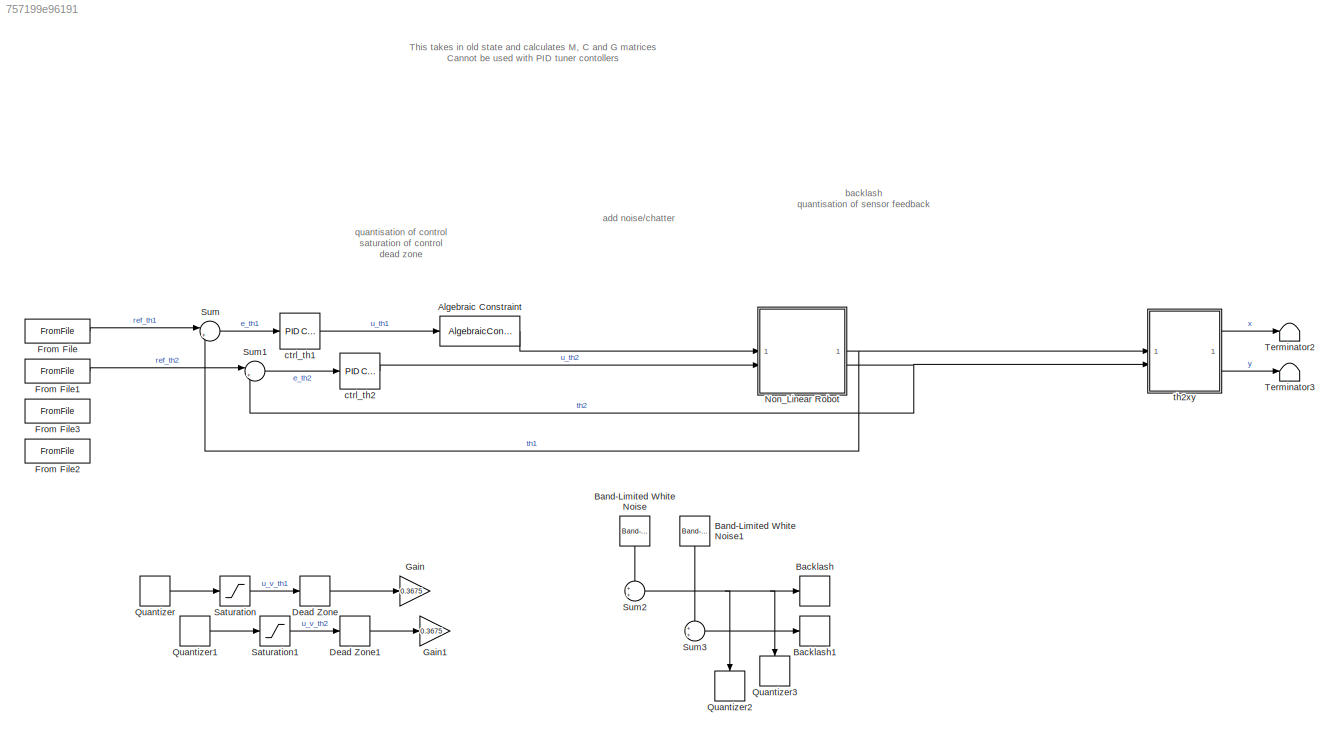
MODEL slx_757199e96191
KIND model
CONFIG AbsTol = auto
CONFIG EnableMultiTasking = off
CONFIG FixedStep = 0.0002
CONFIG MaxStep = auto
CONFIG MinStep = auto
CONFIG RelTol = 1e-3
CONFIG SampleTimeConstraint = Unconstrained
CONFIG SolverName = VariableStepAuto
CONFIG StartTime = 0.0
CONFIG StopTime = 10.0
BLOCK [AlgebraicConstraint] Algebraic Constraint
BLOCK [Backlash] Backlash
  BacklashWidth = 2
  Commented = on
BLOCK [Backlash] Backlash1
  BacklashWidth = 2
  Commented = on
BLOCK [Reference] Band-Limited White Noise  REF=simulink/Sources/Band-Limited
White Noise
  Commented = on
  NameLocation = left
  SourceBlock = simulink/Sources/Band-Limited\nWhite Noise
  SourceType = Band-Limited White Noise.
BLOCK [Reference] Band-Limited White Noise1  REF=simulink/Sources/Band-Limited
White Noise
  Commented = on
  NameLocation = left
  SourceBlock = simulink/Sources/Band-Limited\nWhite Noise
  SourceType = Band-Limited White Noise.
BLOCK [DeadZone] Dead Zone
  Commented = on
BLOCK [DeadZone] Dead Zone1
  Commented = on
BLOCK [FromFile] From File
  FileName = ref_th1.mat
  SampleTime = 0
BLOCK [FromFile] From File1
  FileName = ref_th2.mat
  SampleTime = 0
BLOCK [FromFile] From File2
  Commented = on
  FileName = ref_dth2.mat
  SampleTime = 0
BLOCK [FromFile] From File3
  Commented = on
  FileName = ref_dth1.mat
  SampleTime = 0
BLOCK [Gain] Gain
  Commented = on
  Gain = 0.3675
BLOCK [Gain] Gain1
  Commented = on
  Gain = 0.3675
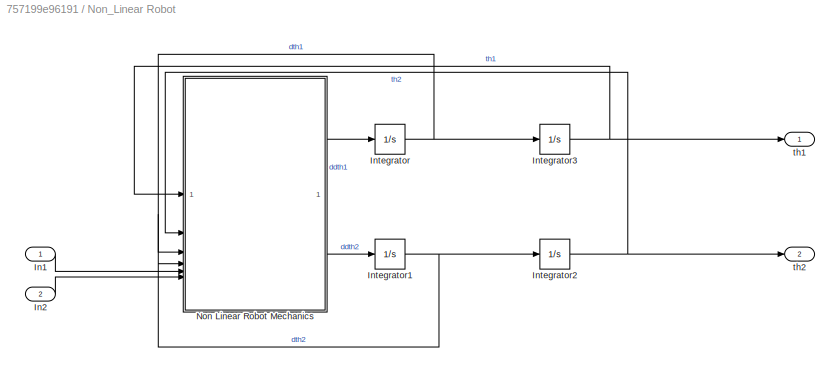
BLOCK [SubSystem] Non_Linear Robot
BLOCK [Inport] Non_Linear Robot/In1
BLOCK [Inport] Non_Linear Robot/In2
  Port = 2
BLOCK [Integrator] Non_Linear Robot/Integrator
BLOCK [Integrator] Non_Linear Robot/Integrator1
BLOCK [Integrator] Non_Linear Robot/Integrator2
BLOCK [Integrator] Non_Linear Robot/Integrator3
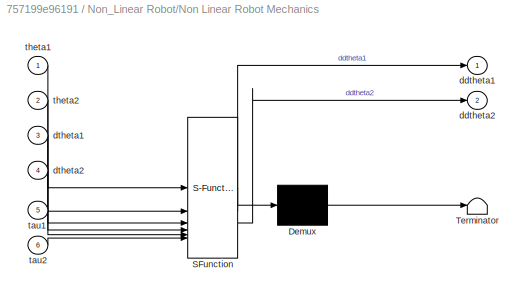
BLOCK [SubSystem] Non_Linear Robot/Non Linear Robot Mechanics
  ErrorFcn = Stateflow.Translate.translate
  PermitHierarchicalResolution = ExplicitOnly
  SFBlockType = MATLAB Function
  TreatAsAtomicUnit = on
BLOCK [Demux] Non_Linear Robot/Non Linear Robot Mechanics/ Demux 
  Outputs = 1
BLOCK [S-Function] Non_Linear Robot/Non Linear Robot Mechanics/ SFunction 
  EnableBusSupport = on
  FunctionName = sf_sfun
  Parameters = I1,I2,L1,L2,g,lc1,lc2,m1,m2
  PortCounts = [6 3]
  SFcnIsStateOwnerBlock = off
  SFunctionDeploymentMode = off
  Tag = Stateflow S-Function 1
BLOCK [Terminator] Non_Linear Robot/Non Linear Robot Mechanics/ Terminator 
BLOCK [Outport] Non_Linear Robot/Non Linear Robot Mechanics/ddtheta1
BLOCK [Outport] Non_Linear Robot/Non Linear Robot Mechanics/ddtheta2
  Port = 2
BLOCK [Inport] Non_Linear Robot/Non Linear Robot Mechanics/dtheta1
  Port = 3
BLOCK [Inport] Non_Linear Robot/Non Linear Robot Mechanics/dtheta2
  Port = 4
BLOCK [Inport] Non_Linear Robot/Non Linear Robot Mechanics/tau1
  Port = 5
BLOCK [Inport] Non_Linear Robot/Non Linear Robot Mechanics/tau2
  Port = 6
BLOCK [Inport] Non_Linear Robot/Non Linear Robot Mechanics/theta1
BLOCK [Inport] Non_Linear Robot/Non Linear Robot Mechanics/theta2
  Port = 2
BLOCK [Outport] Non_Linear Robot/th1
BLOCK [Outport] Non_Linear Robot/th2
  Port = 2
BLOCK [Quantizer] Quantizer
  Commented = on
  QuantizationInterval = 0.05
BLOCK [Quantizer] Quantizer1
  Commented = on
  QuantizationInterval = 0.05
BLOCK [Quantizer] Quantizer2
  Commented = on
  NameLocation = left
  QuantizationInterval = 0.17
BLOCK [Quantizer] Quantizer3
  Commented = on
  NameLocation = left
  QuantizationInterval = 0.17
BLOCK [Saturate] Saturation
  Commented = on
  LowerLimit = -12
  UpperLimit = 12
BLOCK [Saturate] Saturation1
  Commented = on
  LowerLimit = -12
  UpperLimit = 12
BLOCK [Sum] Sum
  Inputs = |+-
BLOCK [Sum] Sum1
  Inputs = |+-
BLOCK [Sum] Sum2
  Commented = on
  Inputs = ++|
BLOCK [Sum] Sum3
  Commented = on
  Inputs = ++|
BLOCK [Terminator] Terminator2
BLOCK [Terminator] Terminator3
BLOCK [Reference] ctrl_th1  REF=slpidlib/PID Controller
  LibrarySourceBlock = simulink/Continuous/PID Controller
  SourceBlock = slpidlib/PID Controller
  SourceType = PID 1dof
BLOCK [Reference] ctrl_th2  REF=slpidlib/PID Controller
  LibrarySourceBlock = simulink/Continuous/PID Controller
  SourceBlock = slpidlib/PID Controller
  SourceType = PID 1dof
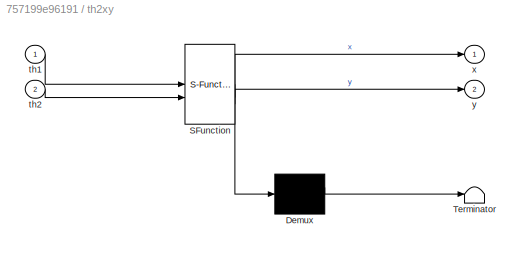
BLOCK [SubSystem] th2xy
  ErrorFcn = Stateflow.Translate.translate
  PermitHierarchicalResolution = ExplicitOnly
  SFBlockType = MATLAB Function
  TreatAsAtomicUnit = on
BLOCK [Demux] th2xy/ Demux 
  Outputs = 1
BLOCK [S-Function] th2xy/ SFunction 
  EnableBusSupport = on
  FunctionName = sf_sfun
  Parameters = L1,L2
  PortCounts = [2 3]
  SFcnIsStateOwnerBlock = off
  SFunctionDeploymentMode = off
  Tag = Stateflow S-Function 3
BLOCK [Terminator] th2xy/ Terminator 
BLOCK [Inport] th2xy/th1
BLOCK [Inport] th2xy/th2
  Port = 2
BLOCK [Outport] th2xy/x
BLOCK [Outport] th2xy/y
  Port = 2
ANNOTATION (root): This takes in old state and calculates M, C and G matrices Cannot be used with PID tuner contollers
ANNOTATION (root): add noise/chatter
ANNOTATION (root): backlash quantisation of sensor feedback
ANNOTATION (root): quantisation of control saturation of control dead zone
LINE Algebraic Constraint:1 -> Non_Linear Robot:1
LINE Band-Limited White Noise1:1 -> Sum3:1
LINE Band-Limited White Noise:1 -> Sum2:1
LINE Dead Zone1:1 -> Gain1:1
LINE Dead Zone:1 -> Gain:1
LINE From File1:1 -> Sum1:1
LINE From File:1 -> Sum:1
LINE Non_Linear Robot/In1:1 -> Non_Linear Robot/Non Linear Robot Mechanics:5
LINE Non_Linear Robot/In2:1 -> Non_Linear Robot/Non Linear Robot Mechanics:6
NET Non_Linear Robot/Integrator1:1 -> Non_Linear Robot/Integrator2:1, Non_Linear Robot/Non Linear Robot Mechanics:4
NET Non_Linear Robot/Integrator2:1 -> Non_Linear Robot/Non Linear Robot Mechanics:2, Non_Linear Robot/th2:1
NET Non_Linear Robot/Integrator3:1 -> Non_Linear Robot/Non Linear Robot Mechanics:1, Non_Linear Robot/th1:1
NET Non_Linear Robot/Integrator:1 -> Non_Linear Robot/Integrator3:1, Non_Linear Robot/Non Linear Robot Mechanics:3
LINE Non_Linear Robot/Non Linear Robot Mechanics:1 -> Non_Linear Robot/Integrator:1
LINE Non_Linear Robot/Non Linear Robot Mechanics:2 -> Non_Linear Robot/Integrator1:1
NET Non_Linear Robot:1 -> Sum:2, th2xy:1
NET Non_Linear Robot:2 -> Sum1:2, th2xy:2
LINE Quantizer1:1 -> Saturation1:1
LINE Quantizer:1 -> Saturation:1
LINE Saturation1:1 -> Dead Zone1:1
LINE Saturation:1 -> Dead Zone:1
LINE Sum1:1 -> ctrl_th2:1
NET Sum2:1 -> Backlash:1, Quantizer2:1, Quantizer3:1
LINE Sum3:1 -> Backlash1:1
LINE Sum:1 -> ctrl_th1:1
LINE ctrl_th1:1 -> Algebraic Constraint:1
LINE ctrl_th2:1 -> Non_Linear Robot:2
LINE th2xy:1 -> Terminator2:1
LINE th2xy:2 -> Terminator3:1
note: NET lines group one-source signal fan-out (src -> all destinations, sorted); 1:1 wires keep LINE
CHART Non_Linear Robot/Non Linear Robot Mechanics states=1 transitions=1
  STATE_LABEL 'eML_blk_kernel()'
  STATE_LABEL 'SCRIPT:\nfunction [ddtheta1, ddtheta2]= Robot_SS(theta1, theta2, dtheta1, dtheta2, tau1, tau2, m2, m1, L1, L2, I1, I2, g, lc1, lc2)\n    % Mass matrix M(theta)\n    M11 = m1 * lc1^2 + m2 * (L1^2 + lc2^2 + 2 * L1 * lc2 * cos(theta2)) + I1 + I2;\n    M12 = m2 * (lc2^2 + L1 * lc2 * cos(theta2)) + I2;\n    M21 = M12;\n    M22 = m2 * lc2^2 + I2;\n    M = [M11, M12; M21, M22];\n    \n    % Coriolis matrix C(thet...<+885ch>'
CHART th2xy states=1 transitions=1
  STATE_LABEL 'eML_blk_kernel()'
  STATE_LABEL 'SCRIPT:\nfunction [x,y] = th_to_xy(th1, th2, L1, L2)\n    x = L1*cos(deg2rad(th1)) + L2*cos(deg2rad(th2));\n    y = L1*sin(deg2rad(th1)) + L2*sin(deg2rad(th2));\n'
CHART  states=0 transitions=0
CHART  states=0 transitions=0
